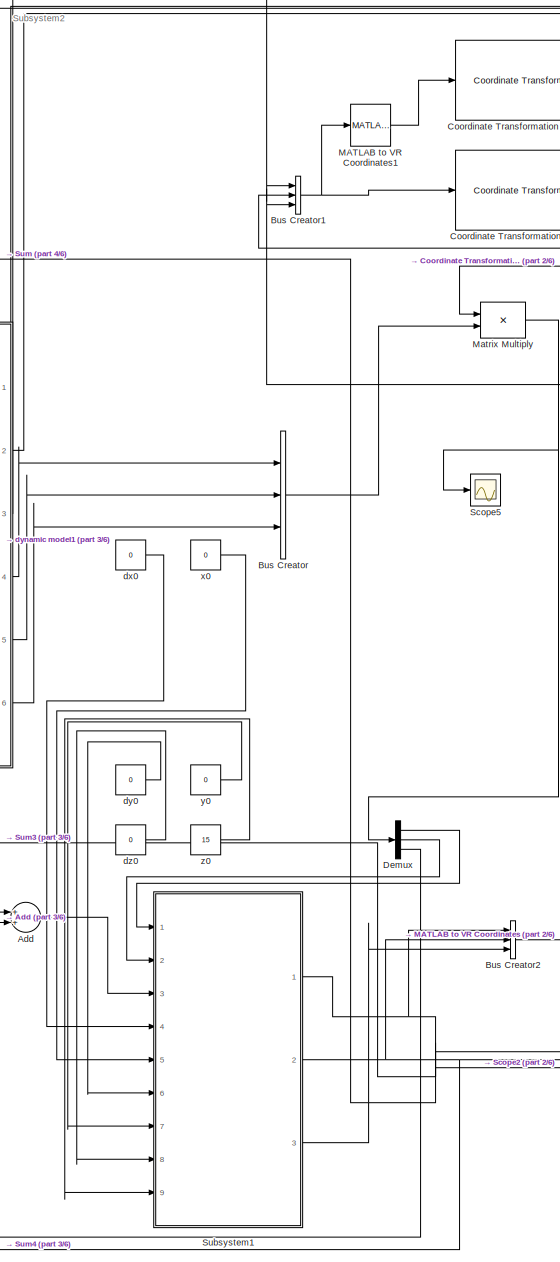
[diagram: root canvas - part 1/6, top right region]
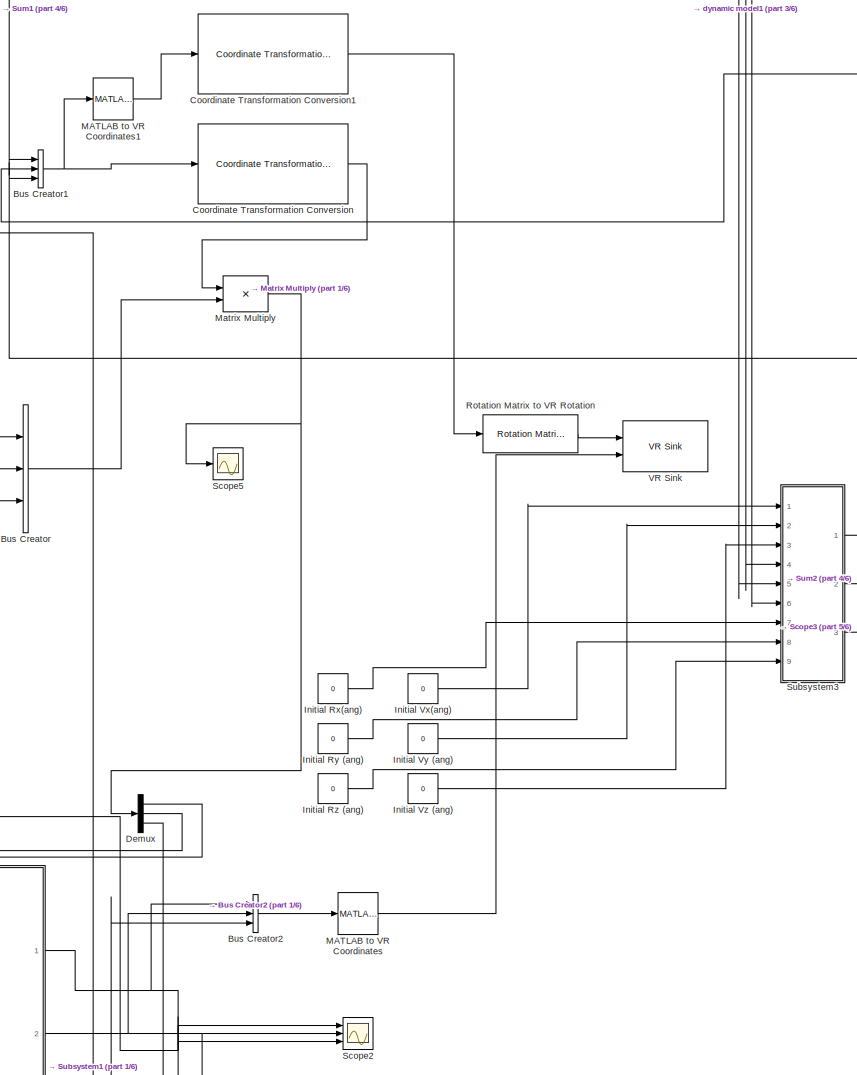
[diagram: root canvas - part 2/6, top right region]
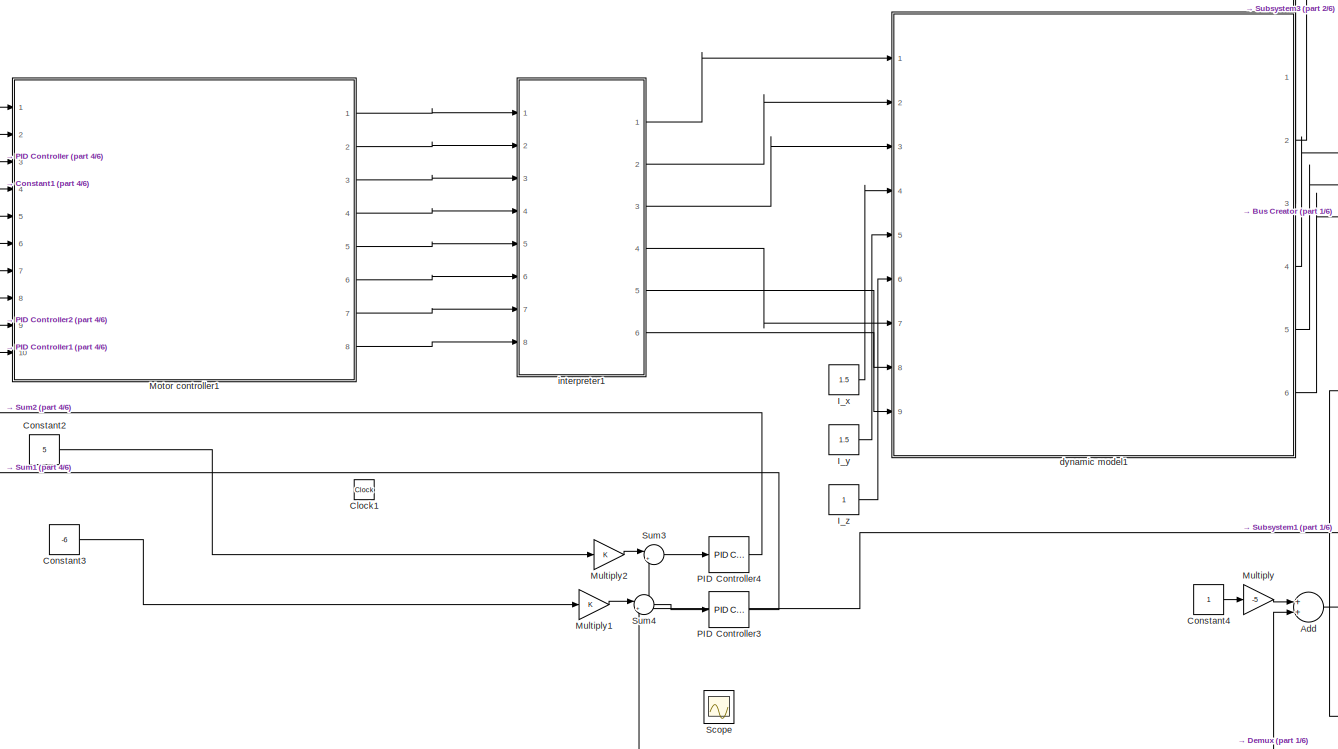
[diagram: root canvas - part 3/6, top center region]
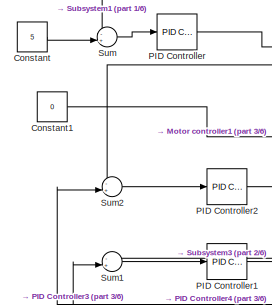
[diagram: root canvas - part 4/6, top center region]
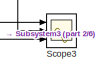
[diagram: root canvas - part 5/6, top right region]
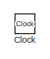
[diagram: root canvas - part 6/6, bottom left region]
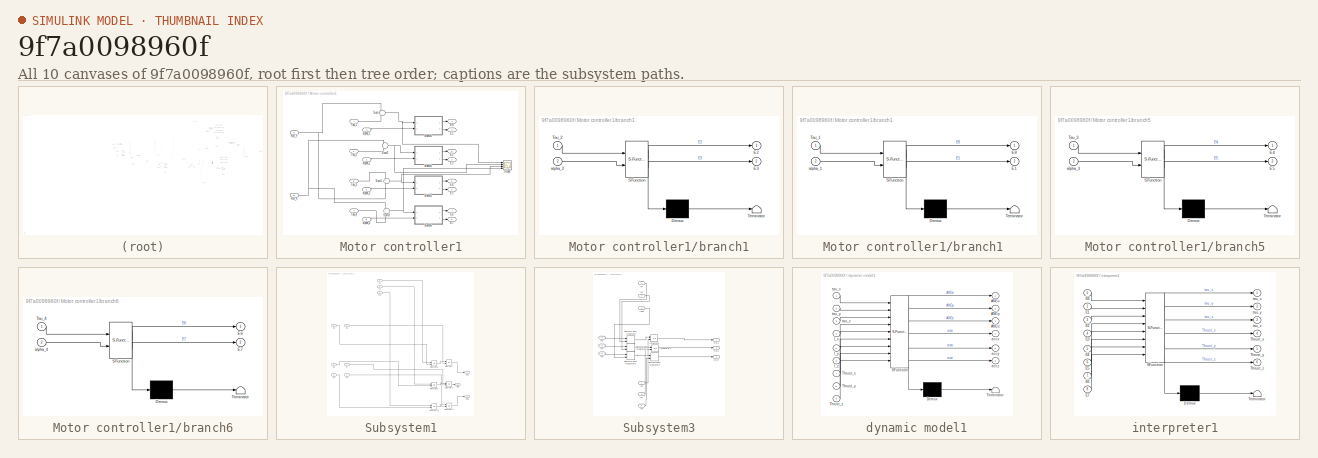
[diagram: thumbnail index - all 10 canvases of the model, root first then tree order]
MODEL slx_9f7a0098960f
KIND model
CONFIG AbsTol = auto
CONFIG EnableMultiTasking = off
CONFIG FixedStep = auto
CONFIG MaxStep = auto
CONFIG MinStep = auto
CONFIG RelTol = 1e-3
CONFIG SampleTimeConstraint = Unconstrained
CONFIG Solver = VariableStepAuto
CONFIG SolverName = VariableStepAuto
CONFIG StartTime = 0.0
CONFIG StopTime = 50
BLOCK [Sum] Add
  InputSameDT = off
  OutDataTypeStr = Inherit: Inherit via internal rule
  Ports = [2, 1]
  SaturateOnIntegerOverflow = off
BLOCK [BusCreator] Bus Creator
  DisplayOption = bar
  InheritFromInputs = on
  Inputs = 3
  Ports = [3, 1]
BLOCK [BusCreator] Bus Creator1
  DisplayOption = bar
  InheritFromInputs = on
  Inputs = 3
  Ports = [3, 1]
BLOCK [BusCreator] Bus Creator2
  DisplayOption = bar
  InheritFromInputs = on
  Inputs = 3
  Ports = [3, 1]
BLOCK [Clock] Clock
BLOCK [Clock] Clock1
BLOCK [Constant] Constant
  Value = 5
BLOCK [Constant] Constant1
  Value = 0
BLOCK [Constant] Constant2
  Value = 5
BLOCK [Constant] Constant3
  Value = -6
BLOCK [Constant] Constant4
BLOCK [Reference] Coordinate Transformation Conversion  REF=robotcorelib/Coordinate Transformation Conversion
  Ports = [1, 1]
  SourceBlock = robotcorelib/Coordinate Transformation Conversion
  SourceProductBaseCode = RO
  SourceProductName = Robotics System Toolbox
  SourceType = robotics.slcore.internal.block.CoordinateTransformationConversion
BLOCK [Reference] Coordinate Transformation Conversion1  REF=robotcorelib/Coordinate Transformation Conversion
  Ports = [1, 1]
  SourceBlock = robotcorelib/Coordinate Transformation Conversion
  SourceProductBaseCode = RO
  SourceProductName = Robotics System Toolbox
  SourceType = robotics.slcore.internal.block.CoordinateTransformationConversion
BLOCK [Demux] Demux
  DisplayOption = bar
  Outputs = 3
  Ports = [1, 3]
BLOCK [Constant] I_x
  Value = 1.5
BLOCK [Constant] I_y
  Value = 1.5
BLOCK [Constant] I_z
BLOCK [Constant] Initial Rx(ang)
  Value = 0
BLOCK [Constant] Initial Ry (ang)
  Value = 0
BLOCK [Constant] Initial Rz (ang)
  Value = 0
BLOCK [Constant] Initial Vx(ang)
  Value = 0
BLOCK [Constant] Initial Vy (ang)
  Value = 0
BLOCK [Constant] Initial Vz (ang)
  Value = 0
BLOCK [Reference] MATLAB to VR Coordinates  REF=vrlib/Utilities/MATLAB to
VR Coordinates
  Ports = [1, 1]
  SourceBlock = vrlib/Utilities/MATLAB to\nVR Coordinates
  SourceProductBaseCode = SL
  SourceProductName = Simulink
  SourceType = MATLAB to VR Coordinates
BLOCK [Reference] MATLAB to VR Coordinates1  REF=vrlib/Utilities/MATLAB to
VR Coordinates
  Ports = [1, 1]
  SourceBlock = vrlib/Utilities/MATLAB to\nVR Coordinates
  SourceProductBaseCode = SL
  SourceProductName = Simulink
  SourceType = MATLAB to VR Coordinates
BLOCK [Product] Matrix Multiply
  InputSameDT = off
  Multiplication = Matrix(*)
  OutDataTypeStr = Inherit: Inherit via internal rule
  Ports = [2, 1]
  RndMeth = Floor
  SaturateOnIntegerOverflow = off
BLOCK [SubSystem] Motor controller1
  Ports = [10, 8]
  RequestExecContextInheritance = off
BLOCK [Outport] Motor controller1/E1
  IconDisplay = Port number
  Port = 2
BLOCK [Outport] Motor controller1/E2
  IconDisplay = Port number
  Port = 3
BLOCK [Outport] Motor controller1/E3
  IconDisplay = Port number
  Port = 4
BLOCK [Outport] Motor controller1/E4
  IconDisplay = Port number
  Port = 5
BLOCK [Outport] Motor controller1/E5
  IconDisplay = Port number
  Port = 6
BLOCK [Outport] Motor controller1/E6
  IconDisplay = Port number
  Port = 7
BLOCK [Outport] Motor controller1/E7
  IconDisplay = Port number
  Port = 8
BLOCK [Outport] Motor controller1/E8 
  IconDisplay = Port number
BLOCK [Inport] Motor controller1/Rot_X
  IconDisplay = Port number
  Port = 10
BLOCK [Inport] Motor controller1/Rot_Y
  IconDisplay = Port number
  Port = 9
BLOCK [Scope] Motor controller1/Scope
  Floating = off
  NumInputPorts = 4
  Ports = [4]
  ScopeSpecificationString = Simulink.scopes.TimeScopeBlockCfg('CurrentConfiguration', extmgr.ConfigurationSet(extmgr.Configuration('Core','General UI',true),extmgr.Configuration('Core','Source UI',true),extmgr.Configuration('Sources','WiredSimulink',true,'DataLoggingVariableName','ScopeData2'),extmgr.Configuration('Visuals','Time Domain',true,'SerializedDisplays',{struct('MinYLimReal','2.96494','MaxYLimReal','16.33723','YLab...<+1454ch>
BLOCK [Sum] Motor controller1/Sum
  IconShape = round
  InputSameDT = off
  Inputs = -|+
  OutDataTypeStr = Inherit: Inherit via internal rule
  Ports = [2, 1]
  SaturateOnIntegerOverflow = off
BLOCK [Sum] Motor controller1/Sum1
  IconShape = round
  InputSameDT = off
  Inputs = +|+
  OutDataTypeStr = Inherit: Inherit via internal rule
  Ports = [2, 1]
  SaturateOnIntegerOverflow = off
BLOCK [Sum] Motor controller1/Sum2
  IconShape = round
  InputSameDT = off
  Inputs = -|+
  OutDataTypeStr = Inherit: Inherit via internal rule
  Ports = [2, 1]
  SaturateOnIntegerOverflow = off
BLOCK [Sum] Motor controller1/Sum3
  IconShape = round
  InputSameDT = off
  Inputs = +|+
  OutDataTypeStr = Inherit: Inherit via internal rule
  Ports = [2, 1]
  SaturateOnIntegerOverflow = off
BLOCK [Inport] Motor controller1/Tau_1 
  IconDisplay = Port number
BLOCK [Inport] Motor controller1/Tau_2
  IconDisplay = Port number
  Port = 3
BLOCK [Inport] Motor controller1/Tau_3
  IconDisplay = Port number
  Port = 5
BLOCK [Inport] Motor controller1/Tau_4
  IconDisplay = Port number
  Port = 7
BLOCK [Inport] Motor controller1/alpha_1
  IconDisplay = Port number
  Port = 2
BLOCK [Inport] Motor controller1/alpha_2
  IconDisplay = Port number
  Port = 4
BLOCK [Inport] Motor controller1/alpha_3
  IconDisplay = Port number
  Port = 6
BLOCK [Inport] Motor controller1/alpha_4
  IconDisplay = Port number
  Port = 8
BLOCK [SubSystem] Motor controller1/branch1
  ErrorFcn = Stateflow.Translate.translate
  PermitHierarchicalResolution = ExplicitOnly
  Ports = [2, 2]
  RequestExecContextInheritance = off
  SFBlockType = MATLAB Function
  TreatAsAtomicUnit = on
BLOCK [SubSystem] Motor controller1/branch1 
  ErrorFcn = Stateflow.Translate.translate
  PermitHierarchicalResolution = ExplicitOnly
  Ports = [2, 2]
  RequestExecContextInheritance = off
  SFBlockType = MATLAB Function
  TreatAsAtomicUnit = on
BLOCK [Demux] Motor controller1/branch1 / Demux 
  Outputs = 1
  Ports = [1, 1]
BLOCK [S-Function] Motor controller1/branch1 / SFunction 
  EnableBusSupport = on
  FunctionName = sf_sfun
  PortCounts = [2 3]
  Ports = [2, 3]
  SFcnIsStateOwnerBlock = off
  SFunctionDeploymentMode = off
  Tag = Stateflow S-Function 13
BLOCK [Terminator] Motor controller1/branch1 / Terminator 
BLOCK [Outport] Motor controller1/branch1 /E1
  IconDisplay = Port number
  Port = 2
BLOCK [Outport] Motor controller1/branch1 /E8
  IconDisplay = Port number
BLOCK [Inport] Motor controller1/branch1 /Tau_1
  IconDisplay = Port number
BLOCK [Inport] Motor controller1/branch1 /alpha_1
  IconDisplay = Port number
  Port = 2
BLOCK [Demux] Motor controller1/branch1/ Demux 
  Outputs = 1
  Ports = [1, 1]
BLOCK [S-Function] Motor controller1/branch1/ SFunction 
  EnableBusSupport = on
  FunctionName = sf_sfun
  PortCounts = [2 3]
  Ports = [2, 3]
  SFcnIsStateOwnerBlock = off
  SFunctionDeploymentMode = off
  Tag = Stateflow S-Function 12
BLOCK [Terminator] Motor controller1/branch1/ Terminator 
BLOCK [Outport] Motor controller1/branch1/E2
  IconDisplay = Port number
BLOCK [Outport] Motor controller1/branch1/E3
  IconDisplay = Port number
  Port = 2
BLOCK [Inport] Motor controller1/branch1/Tau_2
  IconDisplay = Port number
BLOCK [Inport] Motor controller1/branch1/alpha_2
  IconDisplay = Port number
  Port = 2
BLOCK [SubSystem] Motor controller1/branch5
  ErrorFcn = Stateflow.Translate.translate
  PermitHierarchicalResolution = ExplicitOnly
  Ports = [2, 2]
  RequestExecContextInheritance = off
  SFBlockType = MATLAB Function
  TreatAsAtomicUnit = on
BLOCK [Demux] Motor controller1/branch5/ Demux 
  Outputs = 1
  Ports = [1, 1]
BLOCK [S-Function] Motor controller1/branch5/ SFunction 
  EnableBusSupport = on
  FunctionName = sf_sfun
  PortCounts = [2 3]
  Ports = [2, 3]
  SFcnIsStateOwnerBlock = off
  SFunctionDeploymentMode = off
  Tag = Stateflow S-Function 14
BLOCK [Terminator] Motor controller1/branch5/ Terminator 
BLOCK [Outport] Motor controller1/branch5/E4
  IconDisplay = Port number
BLOCK [Outport] Motor controller1/branch5/E5
  IconDisplay = Port number
  Port = 2
BLOCK [Inport] Motor controller1/branch5/Tau_3
  IconDisplay = Port number
BLOCK [Inport] Motor controller1/branch5/alpha_3
  IconDisplay = Port number
  Port = 2
BLOCK [SubSystem] Motor controller1/branch6
  ErrorFcn = Stateflow.Translate.translate
  PermitHierarchicalResolution = ExplicitOnly
  Ports = [2, 2]
  RequestExecContextInheritance = off
  SFBlockType = MATLAB Function
  TreatAsAtomicUnit = on
BLOCK [Demux] Motor controller1/branch6/ Demux 
  Outputs = 1
  Ports = [1, 1]
BLOCK [S-Function] Motor controller1/branch6/ SFunction 
  EnableBusSupport = on
  FunctionName = sf_sfun
  PortCounts = [2 3]
  Ports = [2, 3]
  SFcnIsStateOwnerBlock = off
  SFunctionDeploymentMode = off
  Tag = Stateflow S-Function 15
BLOCK [Terminator] Motor controller1/branch6/ Terminator 
BLOCK [Outport] Motor controller1/branch6/E6
  IconDisplay = Port number
BLOCK [Outport] Motor controller1/branch6/E7
  IconDisplay = Port number
  Port = 2
BLOCK [Inport] Motor controller1/branch6/Tau_4
  IconDisplay = Port number
BLOCK [Inport] Motor controller1/branch6/alpha_4
  IconDisplay = Port number
  Port = 2
BLOCK [Gain] Multiply
  Gain = -5
  OutDataTypeStr = Inherit: Inherit via internal rule
  ParamDataTypeStr = Inherit: Inherit via internal rule
  SaturateOnIntegerOverflow = off
BLOCK [Gain] Multiply1
  OutDataTypeStr = Inherit: Inherit via internal rule
  ParamDataTypeStr = Inherit: Inherit via internal rule
  SaturateOnIntegerOverflow = off
BLOCK [Gain] Multiply2
  OutDataTypeStr = Inherit: Inherit via internal rule
  ParamDataTypeStr = Inherit: Inherit via internal rule
  SaturateOnIntegerOverflow = off
BLOCK [Reference] PID Controller  REF=simulink/Continuous/PID Controller
  Ports = [1, 1]
  SourceBlock = simulink/Continuous/PID Controller
  SourceProductBaseCode = SL
  SourceProductName = Simulink
  SourceType = PID 1dof
BLOCK [Reference] PID Controller1  REF=simulink/Continuous/PID Controller
  Ports = [1, 1]
  SourceBlock = simulink/Continuous/PID Controller
  SourceProductBaseCode = SL
  SourceProductName = Simulink
  SourceType = PID 1dof
BLOCK [Reference] PID Controller2  REF=simulink/Continuous/PID Controller
  Ports = [1, 1]
  SourceBlock = simulink/Continuous/PID Controller
  SourceProductBaseCode = SL
  SourceProductName = Simulink
  SourceType = PID 1dof
BLOCK [Reference] PID Controller3  REF=simulink/Continuous/PID Controller
  Ports = [1, 1]
  SourceBlock = simulink/Continuous/PID Controller
  SourceProductBaseCode = SL
  SourceProductName = Simulink
  SourceType = PID 1dof
BLOCK [Reference] PID Controller4  REF=simulink/Continuous/PID Controller
  Ports = [1, 1]
  SourceBlock = simulink/Continuous/PID Controller
  SourceProductBaseCode = SL
  SourceProductName = Simulink
  SourceType = PID 1dof
BLOCK [Reference] Rotation Matrix to VR Rotation  REF=vrlib/Utilities/Rotation Matrix
to VR Rotation
  Ports = [1, 1]
  SourceBlock = vrlib/Utilities/Rotation Matrix\nto VR Rotation
  SourceProductBaseCode = SL
  SourceProductName = Simulink
  SourceType = Rotation Matrix to VR Rotation
BLOCK [Scope] Scope
  Floating = off
  NumInputPorts = 2
  Ports = [2]
  ScopeSpecificationString = Simulink.scopes.TimeScopeBlockCfg('CurrentConfiguration', extmgr.ConfigurationSet(extmgr.Configuration('Core','General UI',true),extmgr.Configuration('Core','Source UI',true),extmgr.Configuration('Sources','WiredSimulink',true,'DataLoggingVariableName','ScopeData1'),extmgr.Configuration('Visuals','Time Domain',true,'SerializedDisplays',{struct('MinYLimReal','-15.88737','MaxYLimReal','15.51942','YL...<+1448ch>
BLOCK [Scope] Scope2
  Floating = off
  NumInputPorts = 3
  Ports = [3]
  ScopeSpecificationString = Simulink.scopes.TimeScopeBlockCfg('CurrentConfiguration', extmgr.ConfigurationSet(extmgr.Configuration('Core','General UI',true),extmgr.Configuration('Core','Source UI',true),extmgr.Configuration('Sources','WiredSimulink',true,'DataLoggingVariableName','ScopeData3'),extmgr.Configuration('Visuals','Time Domain',true,'SerializedDisplays',{struct('MinYLimReal','-11.80721','MaxYLimReal','17.97858','YL...<+1523ch>
BLOCK [Scope] Scope3
  Floating = off
  NumInputPorts = 3
  Ports = [3]
  ScopeSpecificationString = Simulink.scopes.TimeScopeBlockCfg('CurrentConfiguration', extmgr.ConfigurationSet(extmgr.Configuration('Core','General UI',true),extmgr.Configuration('Core','Source UI',true),extmgr.Configuration('Sources','WiredSimulink',true),extmgr.Configuration('Visuals','Time Domain',true,'SerializedDisplays',{struct('MinYLimReal','-0.16571','MaxYLimReal','0.16934','YLabelReal','','MinYLimMag','0.00000','MaxY...<+1522ch>
BLOCK [Scope] Scope5
  Floating = off
  NumInputPorts = 1
  Ports = [1]
  ScopeSpecificationString = Simulink.scopes.TimeScopeBlockCfg('CurrentConfiguration', extmgr.ConfigurationSet(extmgr.Configuration('Core','General UI',true),extmgr.Configuration('Core','Source UI',true),extmgr.Configuration('Sources','WiredSimulink',true,'DataLoggingVariableName','ScopeData2'),extmgr.Configuration('Visuals','Time Domain',true,'SerializedDisplays',{struct('MinYLimReal','-4.24679','MaxYLimReal','31.58298','YLa...<+1420ch>
BLOCK [SubSystem] Subsystem1
  Ports = [9, 3]
  RequestExecContextInheritance = off
BLOCK [Inport] Subsystem1/In1
  IconDisplay = Port number
BLOCK [Inport] Subsystem1/In2
  IconDisplay = Port number
  Port = 2
BLOCK [Inport] Subsystem1/In3
  IconDisplay = Port number
  Port = 3
BLOCK [Inport] Subsystem1/In4
  IconDisplay = Port number
  Port = 4
BLOCK [Inport] Subsystem1/In5
  IconDisplay = Port number
  Port = 5
BLOCK [Inport] Subsystem1/In6
  IconDisplay = Port number
  Port = 6
BLOCK [Inport] Subsystem1/In7
  IconDisplay = Port number
  Port = 7
BLOCK [Inport] Subsystem1/In8
  IconDisplay = Port number
  Port = 8
BLOCK [Inport] Subsystem1/In9
  IconDisplay = Port number
  Port = 9
BLOCK [Integrator] Subsystem1/Integrator10
  InitialConditionSource = external
  Ports = [2, 1]
BLOCK [Integrator] Subsystem1/Integrator11
  InitialConditionSource = external
  Ports = [2, 1]
BLOCK [Integrator] Subsystem1/Integrator6
  InitialConditionSource = external
  Ports = [2, 1]
BLOCK [Integrator] Subsystem1/Integrator7
  InitialConditionSource = external
  Ports = [2, 1]
BLOCK [Integrator] Subsystem1/Integrator8
  InitialConditionSource = external
  Ports = [2, 1]
BLOCK [Integrator] Subsystem1/Integrator9
  InitialConditionSource = external
  Ports = [2, 1]
BLOCK [Outport] Subsystem1/Out1
  IconDisplay = Port number
BLOCK [Outport] Subsystem1/Out2
  IconDisplay = Port number
  Port = 2
BLOCK [Outport] Subsystem1/Out3
  IconDisplay = Port number
  Port = 3
BLOCK [SubSystem] Subsystem3
  Ports = [9, 3]
  RequestExecContextInheritance = off
BLOCK [DiscreteIntegrator] Subsystem3/Discrete-Time Integrator
  ICPrevOutput = DiscIntNeverNeededParam
  ICPrevScaledInput = DiscIntNeverNeededParam
  InitialConditionSetting = Auto
  InitialConditionSource = external
  Ports = [2, 1]
  SampleTime = 0.01
BLOCK [DiscreteIntegrator] Subsystem3/Discrete-Time Integrator2
  ICPrevOutput = DiscIntNeverNeededParam
  ICPrevScaledInput = DiscIntNeverNeededParam
  InitialConditionSetting = Auto
  InitialConditionSource = external
  Ports = [2, 1]
  SampleTime = -1
BLOCK [DiscreteIntegrator] Subsystem3/Discrete-Time Integrator4
  ICPrevOutput = DiscIntNeverNeededParam
  ICPrevScaledInput = DiscIntNeverNeededParam
  InitialConditionSetting = Auto
  InitialConditionSource = external
  Ports = [2, 1]
  SampleTime = -1
BLOCK [DiscreteIntegrator] Subsystem3/Discrete-Time Integrator5
  ICPrevOutput = DiscIntNeverNeededParam
  ICPrevScaledInput = DiscIntNeverNeededParam
  InitialConditionSetting = Auto
  InitialConditionSource = external
  Ports = [2, 1]
  SampleTime = -1
BLOCK [Inport] Subsystem3/In1
  IconDisplay = Port number
BLOCK [Inport] Subsystem3/In2
  IconDisplay = Port number
  Port = 2
BLOCK [Inport] Subsystem3/In3
  IconDisplay = Port number
  Port = 4
BLOCK [Inport] Subsystem3/In4
  IconDisplay = Port number
  Port = 5
BLOCK [Inport] Subsystem3/In5
  IconDisplay = Port number
  Port = 6
BLOCK [Inport] Subsystem3/In6
  IconDisplay = Port number
  Port = 7
BLOCK [Inport] Subsystem3/In7
  IconDisplay = Port number
  Port = 8
BLOCK [Inport] Subsystem3/In8
  IconDisplay = Port number
  Port = 9
BLOCK [Inport] Subsystem3/Input
  IconDisplay = Port number
  Port = 3
BLOCK [Integrator] Subsystem3/Integrator
  InitialConditionSource = external
  Ports = [2, 1]
BLOCK [Integrator] Subsystem3/Integrator1
  InitialConditionSource = external
  Ports = [2, 1]
BLOCK [Outport] Subsystem3/Out1
  IconDisplay = Port number
BLOCK [Outport] Subsystem3/Out2
  IconDisplay = Port number
  Port = 2
BLOCK [Outport] Subsystem3/Out3
  IconDisplay = Port number
  Port = 3
BLOCK [Sum] Sum
  IconShape = round
  InputSameDT = off
  Inputs = -+|
  OutDataTypeStr = Inherit: Inherit via internal rule
  Ports = [2, 1]
  SaturateOnIntegerOverflow = off
BLOCK [Sum] Sum1
  IconShape = round
  InputSameDT = off
  Inputs = -+|
  OutDataTypeStr = Inherit: Inherit via internal rule
  Ports = [2, 1]
  SaturateOnIntegerOverflow = off
BLOCK [Sum] Sum2
  IconShape = round
  InputSameDT = off
  Inputs = -+|
  OutDataTypeStr = Inherit: Inherit via internal rule
  Ports = [2, 1]
  SaturateOnIntegerOverflow = off
BLOCK [Sum] Sum3
  IconShape = round
  InputSameDT = off
  Inputs = |+-
  OutDataTypeStr = Inherit: Inherit via internal rule
  Ports = [2, 1]
  SaturateOnIntegerOverflow = off
BLOCK [Sum] Sum4
  IconShape = round
  InputSameDT = off
  Inputs = |+-
  OutDataTypeStr = Inherit: Inherit via internal rule
  Ports = [2, 1]
  SaturateOnIntegerOverflow = off
BLOCK [Reference] VR Sink  REF=vrlib/VR Sink
  InstantiateOnLoad = on
  Ports = [2, 1]
  SourceBlock = vrlib/VR Sink
  SourceProductBaseCode = SL
  SourceProductName = Simulink
  SourceType = Virtual Reality Sink
BLOCK [Constant] dx0
  Value = 0
BLOCK [Constant] dy0
  Value = 0
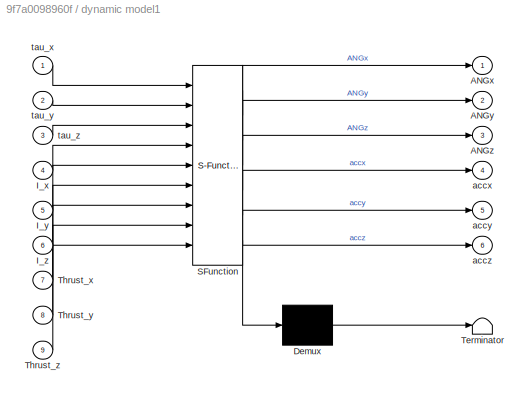
BLOCK [SubSystem] dynamic model1
  ErrorFcn = Stateflow.Translate.translate
  PermitHierarchicalResolution = ExplicitOnly
  Ports = [9, 6]
  RequestExecContextInheritance = off
  SFBlockType = MATLAB Function
  TreatAsAtomicUnit = on
BLOCK [Demux] dynamic model1/ Demux 
  Outputs = 1
  Ports = [1, 1]
BLOCK [S-Function] dynamic model1/ SFunction 
  EnableBusSupport = on
  FunctionName = sf_sfun
  PortCounts = [9 7]
  Ports = [9, 7]
  SFcnIsStateOwnerBlock = off
  SFunctionDeploymentMode = off
  Tag = Stateflow S-Function 16
BLOCK [Terminator] dynamic model1/ Terminator 
BLOCK [Outport] dynamic model1/ANGx
  IconDisplay = Port number
BLOCK [Outport] dynamic model1/ANGy
  IconDisplay = Port number
  Port = 2
BLOCK [Outport] dynamic model1/ANGz
  IconDisplay = Port number
  Port = 3
BLOCK [Inport] dynamic model1/I_x
  IconDisplay = Port number
  Port = 4
BLOCK [Inport] dynamic model1/I_y
  IconDisplay = Port number
  Port = 5
BLOCK [Inport] dynamic model1/I_z
  IconDisplay = Port number
  Port = 6
BLOCK [Inport] dynamic model1/Thrust_x
  IconDisplay = Port number
  Port = 7
BLOCK [Inport] dynamic model1/Thrust_y
  IconDisplay = Port number
  Port = 8
BLOCK [Inport] dynamic model1/Thrust_z
  IconDisplay = Port number
  Port = 9
BLOCK [Outport] dynamic model1/accx
  IconDisplay = Port number
  Port = 4
BLOCK [Outport] dynamic model1/accy
  IconDisplay = Port number
  Port = 5
BLOCK [Outport] dynamic model1/accz
  IconDisplay = Port number
  Port = 6
BLOCK [Inport] dynamic model1/tau_x
  IconDisplay = Port number
BLOCK [Inport] dynamic model1/tau_y
  IconDisplay = Port number
  Port = 2
BLOCK [Inport] dynamic model1/tau_z
  IconDisplay = Port number
  Port = 3
BLOCK [Constant] dz0
  Value = 0
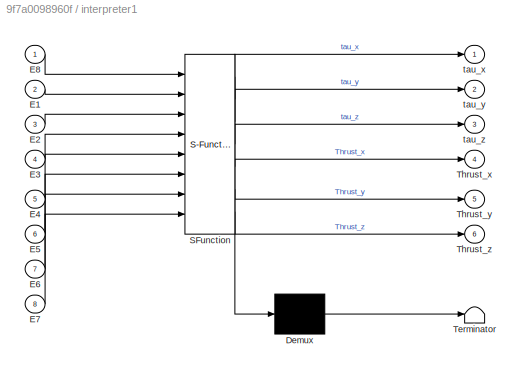
BLOCK [SubSystem] interpreter1
  ErrorFcn = Stateflow.Translate.translate
  PermitHierarchicalResolution = ExplicitOnly
  Ports = [8, 6]
  RequestExecContextInheritance = off
  SFBlockType = MATLAB Function
  TreatAsAtomicUnit = on
BLOCK [Demux] interpreter1/ Demux 
  Outputs = 1
  Ports = [1, 1]
BLOCK [S-Function] interpreter1/ SFunction 
  EnableBusSupport = on
  FunctionName = sf_sfun
  PortCounts = [8 7]
  Ports = [8, 7]
  SFcnIsStateOwnerBlock = off
  SFunctionDeploymentMode = off
  Tag = Stateflow S-Function 17
BLOCK [Terminator] interpreter1/ Terminator 
BLOCK [Inport] interpreter1/E1
  IconDisplay = Port number
  Port = 2
BLOCK [Inport] interpreter1/E2
  IconDisplay = Port number
  Port = 3
BLOCK [Inport] interpreter1/E3
  IconDisplay = Port number
  Port = 4
BLOCK [Inport] interpreter1/E4
  IconDisplay = Port number
  Port = 5
BLOCK [Inport] interpreter1/E5
  IconDisplay = Port number
  Port = 6
BLOCK [Inport] interpreter1/E6
  IconDisplay = Port number
  Port = 7
BLOCK [Inport] interpreter1/E7
  IconDisplay = Port number
  Port = 8
BLOCK [Inport] interpreter1/E8
  IconDisplay = Port number
BLOCK [Outport] interpreter1/Thrust_x
  IconDisplay = Port number
  Port = 4
BLOCK [Outport] interpreter1/Thrust_y
  IconDisplay = Port number
  Port = 5
BLOCK [Outport] interpreter1/Thrust_z
  IconDisplay = Port number
  Port = 6
BLOCK [Outport] interpreter1/tau_x
  IconDisplay = Port number
BLOCK [Outport] interpreter1/tau_y
  IconDisplay = Port number
  Port = 2
BLOCK [Outport] interpreter1/tau_z
  IconDisplay = Port number
  Port = 3
BLOCK [Constant] x0
  Value = 0
BLOCK [Constant] y0
  Value = 0
BLOCK [Constant] z0
  Value = 15
ANNOTATION (root): Subsystem2
LINE Add:1 -> Subsystem1:3
NET Bus Creator1:1 -> Coordinate Transformation Conversion:1, MATLAB to VR Coordinates1:1
LINE Bus Creator2:1 -> MATLAB to VR Coordinates:1
LINE Bus Creator:1 -> Matrix Multiply:2
NET Constant1:1 -> Motor controller1:2, Motor controller1:4, Motor controller1:6, Motor controller1:8
LINE Constant2:1 -> Multiply2:1
LINE Constant3:1 -> Multiply1:1
LINE Constant4:1 -> Multiply:1
LINE Constant:1 -> Sum:2
LINE Coordinate Transformation Conversion1:1 -> Rotation Matrix to VR Rotation:1
LINE Coordinate Transformation Conversion:1 -> Matrix Multiply:1
LINE Demux:1 -> Subsystem1:1
LINE Demux:2 -> Subsystem1:2
LINE Demux:3 -> Add:2
LINE I_x:1 -> dynamic model1:4
LINE I_y:1 -> dynamic model1:5
LINE I_z:1 -> dynamic model1:6
LINE Initial Rx(ang):1 -> Subsystem3:7
LINE Initial Ry (ang):1 -> Subsystem3:8
LINE Initial Rz (ang):1 -> Subsystem3:9
LINE Initial Vx(ang):1 -> Subsystem3:1
LINE Initial Vy (ang):1 -> Subsystem3:2
LINE Initial Vz (ang):1 -> Subsystem3:3
LINE MATLAB to VR Coordinates1:1 -> Coordinate Transformation Conversion1:1
LINE MATLAB to VR Coordinates:1 -> VR Sink:2
NET Matrix Multiply:1 -> Demux:1, Scope5:1
NET Motor controller1/Rot_X:1 -> Motor controller1/Sum2:1, Motor controller1/Sum3:1
NET Motor controller1/Rot_Y:1 -> Motor controller1/Sum1:2, Motor controller1/Sum:1
NET Motor controller1/Sum1:1 -> Motor controller1/Scope:3, Motor controller1/branch5:1
NET Motor controller1/Sum2:1 -> Motor controller1/Scope:2, Motor controller1/branch1:1
NET Motor controller1/Sum3:1 -> Motor controller1/Scope:4, Motor controller1/branch6:1
NET Motor controller1/Sum:1 -> Motor controller1/Scope:1, Motor controller1/branch1 :1
LINE Motor controller1/Tau_1 :1 -> Motor controller1/Sum:2
LINE Motor controller1/Tau_2:1 -> Motor controller1/Sum2:2
LINE Motor controller1/Tau_3:1 -> Motor controller1/Sum1:1
LINE Motor controller1/Tau_4:1 -> Motor controller1/Sum3:2
LINE Motor controller1/alpha_1:1 -> Motor controller1/branch1 :2
LINE Motor controller1/alpha_2:1 -> Motor controller1/branch1:2
LINE Motor controller1/alpha_3:1 -> Motor controller1/branch5:2
LINE Motor controller1/alpha_4:1 -> Motor controller1/branch6:2
LINE Motor controller1/branch1 :1 -> Motor controller1/E8 :1
LINE Motor controller1/branch1 :2 -> Motor controller1/E1:1
LINE Motor controller1/branch1:1 -> Motor controller1/E2:1
LINE Motor controller1/branch1:2 -> Motor controller1/E3:1
LINE Motor controller1/branch5:1 -> Motor controller1/E4:1
LINE Motor controller1/branch5:2 -> Motor controller1/E5:1
LINE Motor controller1/branch6:1 -> Motor controller1/E6:1
LINE Motor controller1/branch6:2 -> Motor controller1/E7:1
LINE Motor controller1:1 -> interpreter1:1
LINE Motor controller1:2 -> interpreter1:2
LINE Motor controller1:3 -> interpreter1:3
LINE Motor controller1:4 -> interpreter1:4
LINE Motor controller1:5 -> interpreter1:5
LINE Motor controller1:6 -> interpreter1:6
LINE Motor controller1:7 -> interpreter1:7
LINE Motor controller1:8 -> interpreter1:8
LINE Multiply1:1 -> Sum4:1
LINE Multiply2:1 -> Sum3:1
LINE Multiply:1 -> Add:1
LINE PID Controller1:1 -> Motor controller1:10
LINE PID Controller2:1 -> Motor controller1:9
LINE PID Controller3:1 -> Sum1:2
LINE PID Controller4:1 -> Sum2:2
NET PID Controller:1 -> Motor controller1:1, Motor controller1:3, Motor controller1:5, Motor controller1:7
LINE Rotation Matrix to VR Rotation:1 -> VR Sink:1
LINE Subsystem1/In1:1 -> Subsystem1/Integrator6:1
LINE Subsystem1/In2:1 -> Subsystem1/Integrator8:1
LINE Subsystem1/In3:1 -> Subsystem1/Integrator10:1
LINE Subsystem1/In4:1 -> Subsystem1/Integrator6:2
LINE Subsystem1/In5:1 -> Subsystem1/Integrator7:2
LINE Subsystem1/In6:1 -> Subsystem1/Integrator8:2
LINE Subsystem1/In7:1 -> Subsystem1/Integrator9:2
LINE Subsystem1/In8:1 -> Subsystem1/Integrator10:2
LINE Subsystem1/In9:1 -> Subsystem1/Integrator11:2
LINE Subsystem1/Integrator10:1 -> Subsystem1/Integrator11:1
LINE Subsystem1/Integrator11:1 -> Subsystem1/Out3:1
LINE Subsystem1/Integrator6:1 -> Subsystem1/Integrator7:1
LINE Subsystem1/Integrator7:1 -> Subsystem1/Out1:1
LINE Subsystem1/Integrator8:1 -> Subsystem1/Integrator9:1
LINE Subsystem1/Integrator9:1 -> Subsystem1/Out2:1
NET Subsystem1:1 -> Bus Creator2:1, Scope2:1, Sum3:2
NET Subsystem1:2 -> Bus Creator2:2, Scope2:2, Sum4:2
NET Subsystem1:3 -> Bus Creator2:3, Scope2:3, Sum:1
LINE Subsystem3/Discrete-Time Integrator2:1 -> Subsystem3/Integrator1:1
LINE Subsystem3/Discrete-Time Integrator4:1 -> Subsystem3/Out3:1
LINE Subsystem3/Discrete-Time Integrator5:1 -> Subsystem3/Discrete-Time Integrator4:1
LINE Subsystem3/Discrete-Time Integrator:1 -> Subsystem3/Integrator:1
LINE Subsystem3/In1:1 -> Subsystem3/Discrete-Time Integrator:2
LINE Subsystem3/In2:1 -> Subsystem3/Discrete-Time Integrator2:2
LINE Subsystem3/In3:1 -> Subsystem3/Discrete-Time Integrator:1
LINE Subsystem3/In4:1 -> Subsystem3/Discrete-Time Integrator2:1
LINE Subsystem3/In5:1 -> Subsystem3/Discrete-Time Integrator5:1
LINE Subsystem3/In6:1 -> Subsystem3/Integrator:2
LINE Subsystem3/In7:1 -> Subsystem3/Integrator1:2
LINE Subsystem3/In8:1 -> Subsystem3/Discrete-Time Integrator4:2
LINE Subsystem3/Input:1 -> Subsystem3/Discrete-Time Integrator5:2
LINE Subsystem3/Integrator1:1 -> Subsystem3/Out2:1
LINE Subsystem3/Integrator:1 -> Subsystem3/Out1:1
NET Subsystem3:1 -> Bus Creator1:1, Scope3:1, Sum1:1
NET Subsystem3:2 -> Bus Creator1:2, Scope3:2, Sum2:1
NET Subsystem3:3 -> Bus Creator1:3, Scope3:3
LINE Sum1:1 -> PID Controller1:1
LINE Sum2:1 -> PID Controller2:1
LINE Sum3:1 -> PID Controller4:1
LINE Sum4:1 -> PID Controller3:1
LINE Sum:1 -> PID Controller:1
LINE dx0:1 -> Subsystem1:4
LINE dy0:1 -> Subsystem1:6
LINE dynamic model1:1 -> Subsystem3:4
LINE dynamic model1:2 -> Subsystem3:5
LINE dynamic model1:3 -> Subsystem3:6
LINE dynamic model1:4 -> Bus Creator:1
LINE dynamic model1:5 -> Bus Creator:2
LINE dynamic model1:6 -> Bus Creator:3
LINE dz0:1 -> Subsystem1:8
LINE interpreter1:1 -> dynamic model1:1
LINE interpreter1:2 -> dynamic model1:2
LINE interpreter1:3 -> dynamic model1:3
LINE interpreter1:4 -> dynamic model1:7
LINE interpreter1:5 -> dynamic model1:8
LINE interpreter1:6 -> dynamic model1:9
LINE x0:1 -> Subsystem1:5
LINE y0:1 -> Subsystem1:7
LINE z0:1 -> Subsystem1:9
note: NET lines group one-source signal fan-out (src -> all destinations, sorted); 1:1 wires keep LINE
CHART Motor controller1/branch1 states=1 transitions=1
  STATE_LABEL 'eML_blk_kernel()'
  STATE_LABEL 'SCRIPT:\nfunction[E2, E3] = fcn(Tau_2, alpha_2)\n    E2 = (Tau_2 - (alpha_2*Tau_2))*0.5;\n    E3 = (Tau_2 + (alpha_2*Tau_2))*0.5;\nend'
CHART Motor controller1/branch1
 states=1 transitions=1
  STATE_LABEL 'eML_blk_kernel()'
  STATE_LABEL 'SCRIPT:\nfunction[E8, E1] = fcn(Tau_1, alpha_1)\n    E8 = (Tau_1 - (alpha_1*Tau_1))*0.5;\n    E1 = (Tau_1 + (alpha_1*Tau_1))*0.5;\nend'
CHART Motor controller1/branch5 states=1 transitions=1
  STATE_LABEL 'eML_blk_kernel()'
  STATE_LABEL 'SCRIPT:\nfunction[E4, E5] = fcn(Tau_3, alpha_3)\n    E4 = (Tau_3 - (alpha_3*Tau_3))*0.5;\n    E5 = (Tau_3 + (alpha_3*Tau_3))*0.5;\nend'
CHART Motor controller1/branch6 states=1 transitions=1
  STATE_LABEL 'eML_blk_kernel()'
  STATE_LABEL 'SCRIPT:\nfunction[E6, E7] = fcn(Tau_4, alpha_4)\n    E6 = (Tau_4 - (alpha_4*Tau_4))*0.5;\n    E7 = (Tau_4 + (alpha_4*Tau_4))*0.5;\nend'
CHART dynamic model1 states=1 transitions=1
  STATE_LABEL 'eML_blk_kernel()'
  STATE_LABEL 'SCRIPT:\nfunction [ANGx, ANGy, ANGz, accx ,accy, accz] = fcn(tau_x, tau_y, tau_z, I_x, I_y, I_z,Thrust_x,Thrust_y,Thrust_z)\n\nmass = 1;\ng = -5;\nANG = [tau_x/I_x;tau_y/I_y;tau_z/I_z];\n\nANGx = ANG(1);\nANGy = ANG(2);\nANGz = ANG(3);\n\nacc = [(Thrust_x/mass);(Thrust_y/mass);(Thrust_z/mass)];\naccx = acc(1);\naccy = acc(2);\naccz = acc(3);\nend\n\n'
CHART interpreter1 states=1 transitions=1
  STATE_LABEL 'eML_blk_kernel()'
  STATE_LABEL 'SCRIPT:\nfunction [tau_x, tau_y, tau_z, Thrust_x, Thrust_y, Thrust_z] = fcn(E8, E1, E2, E3, E4, E5, E6, E7)\n\ntau_x = ((E2+E3)-(E6+E7)) + 0.1*((E1+E4)-(E5+E8));\ntau_y = ((E4+E5)-(E1+E8)) + 0.1*((E3+E6)-(E2+E7));\ntau_z = (0.1*(E2+E6+E8+E4) - 0.1*(E3+E7+E1+E5));\n\nThrust_z = E1+E2+E3+E4+E5+E6+E7+E8;\nThrust_y = (0.1*(E5+E8)) - (0.1*(E4+E1));\nThrust_x = (0.1*(E3+E6)) - (0.1*(E2+E7));\n\nend\n'
